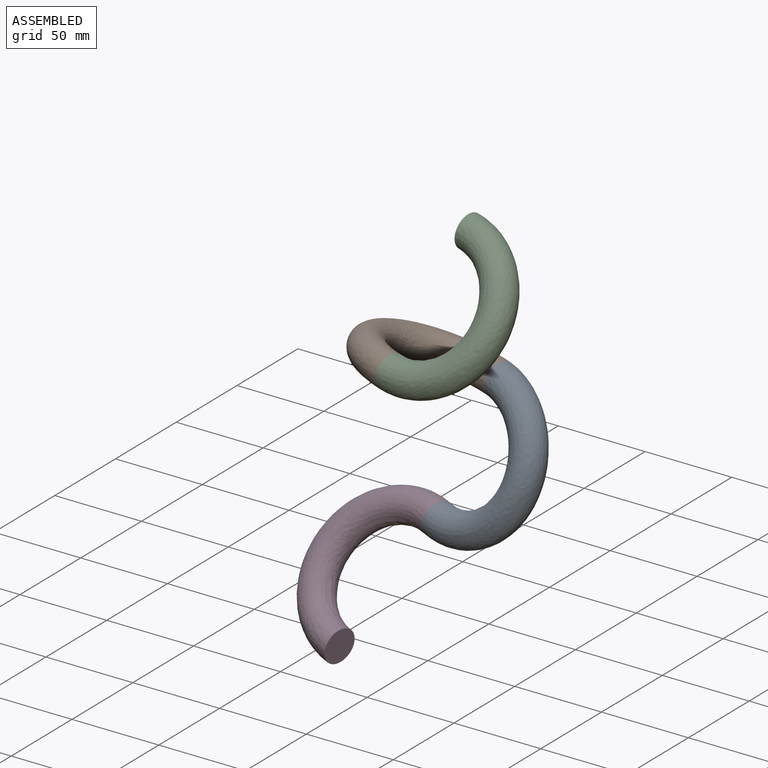
[diagram: assembled view]
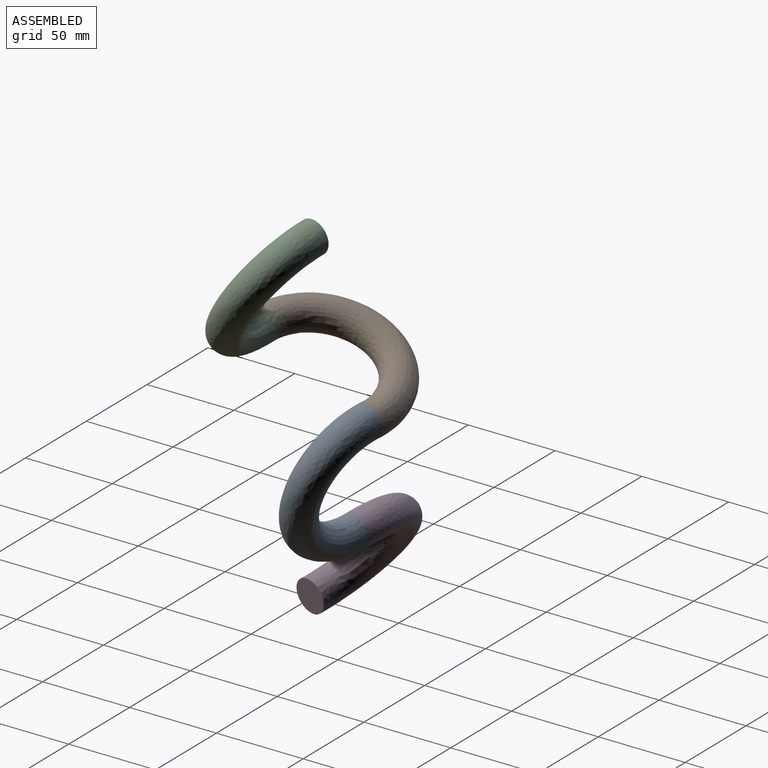
[diagram: assembled view, second angle]
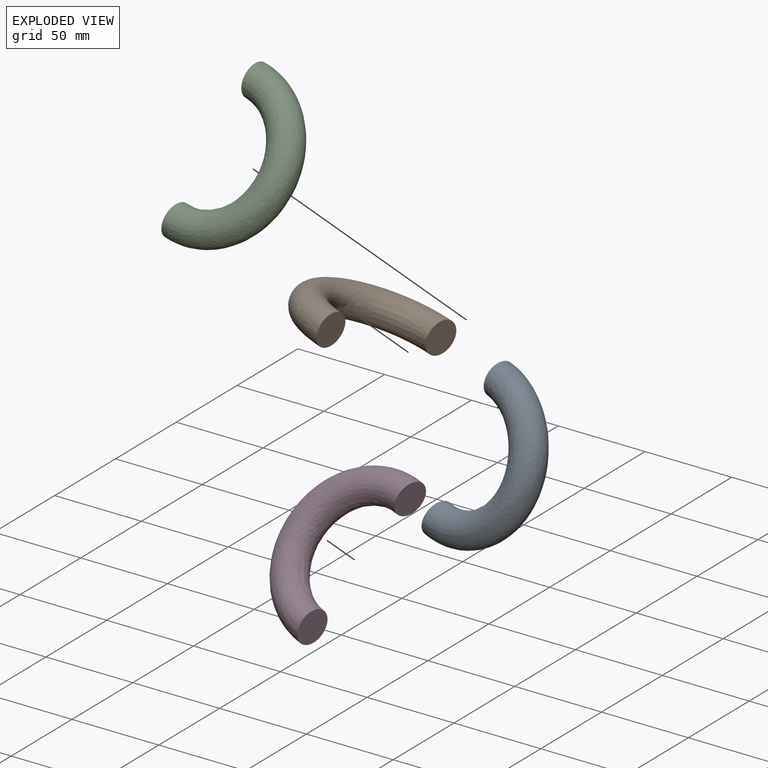
[diagram: exploded view]
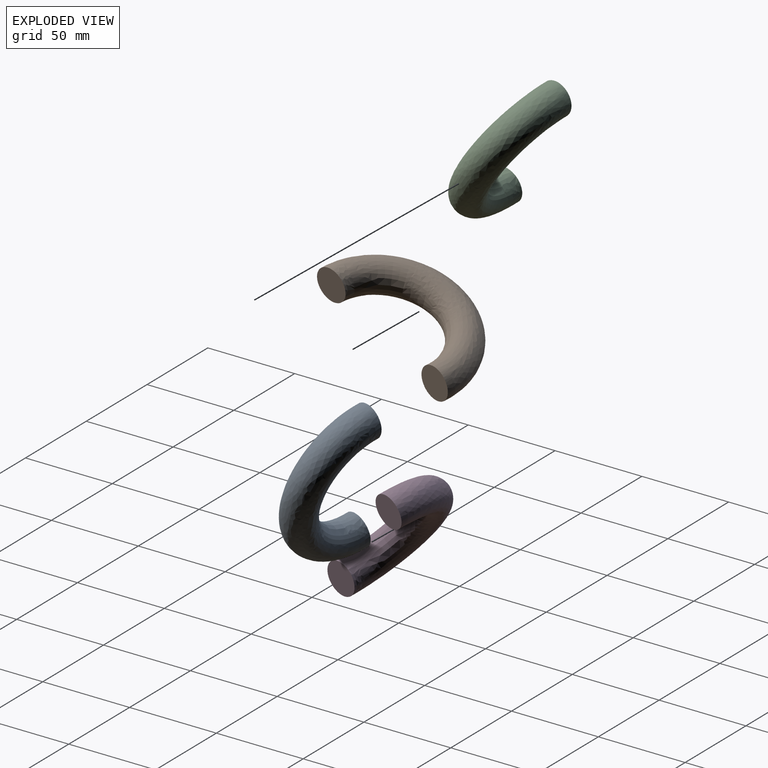
[diagram: exploded view, second angle]
ASSEMBLY  parts=4 mates=3
PART A: 3 faces, bbox 50x38x97.3 mm
  f0: plane 18.99x18.99mm, normal (-1,0,0), area 283.1mm2, adj f2
  f1: plane 18.99x18.93mm, normal (-1,0,-0.08), area 283.1mm2, adj f2
  f2: bspline ~97.28x49.98mm, area 7325mm2, adj f0,f1
PART B: same geometry as A
PART C: same geometry as A
PART D: same geometry as A
PLACE A rot(axis=(-0.67,0.53,-0.52),26.8deg) t=(48.3,60.21,110.93)mm
PLACE B rot(axis=(-0.02,-0.57,0.82),163.8deg) t=(69.26,81.07,181.08)mm
PLACE C rot(axis=(-0.92,0.33,-0.21),36deg) t=(54.71,11.34,207.94)mm
PLACE D rot(axis=(-0.1,-0.94,0.34),163.6deg) t=(48.3,60.21,110.93)mm
MATE revolute B.f1 <-> C.f0  axis (0.97,-0.18,-0.16) through (54.71,11.34,207.94)mm
MATE revolute A.f1 <-> B.f0  axis (-0.96,0.25,0.13) through (69.26,81.07,181.08)mm
MATE revolute D.f0 <-> A.f0  axis (0.94,-0.27,-0.2) through (48.3,60.21,110.93)mm
